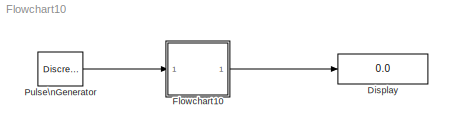
MODEL Flowchart10
KIND model
BLOCK [Display] Display
  Decimation = 1
  Ports = [1]
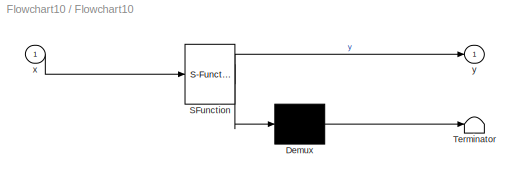
BLOCK [SubSystem] Flowchart10
  MaskDescription = Stateflow diagram
  MaskDisplay = plot(sf('Private','sfblk','xIcon'),sf('Private','sfblk','yIcon'));text(0.5,0,sf('Private', 'sfblk', 'tIcon'),'HorizontalAl','Center','VerticalAl','Bottom');
  MaskIconFrame = off
  MaskIconOpaque = off
  MaskIconRotate = none
  MaskIconUnits = autoscale
  MaskSelfModifiable = on
  MaskType = Stateflow
  MinAlgLoopOccurrences = off
  Ports = [1, 1]
  RTWSystemCode = Auto
  TreatAsAtomicUnit = off
BLOCK [Demux] Flowchart10/ Demux 
  Outputs = 1
  Ports = [1, 1]
BLOCK [S-Function] Flowchart10/ SFunction 
  FunctionName = sf_sfun
  PortCounts = [1 2]
  Ports = [1, 2]
  Tag = Stateflow S-Function Flowchart10 1
BLOCK [Terminator] Flowchart10/ Terminator 
BLOCK [Inport] Flowchart10/x
  IconDisplay = Port number
  LatchInput = off
  Port = 1
BLOCK [Outport] Flowchart10/y
  IconDisplay = Port number
BLOCK [DiscretePulseGenerator] Pulse\nGenerator
  Ports = [0, 1]
LINE Flowchart10/ Demux :1 -> Flowchart10/ Terminator :1
LINE Flowchart10/ SFunction :1 -> Flowchart10/ Demux :1
LINE Flowchart10/ SFunction :2 -> Flowchart10/y:1
LINE Flowchart10/x:1 -> Flowchart10/ SFunction :1
LINE Flowchart10:1 -> Display:1
LINE Pulse\nGenerator:1 -> Flowchart10:1
CHART Flowchart10 states=1 transitions=4
  STATE_LABEL 'A'
